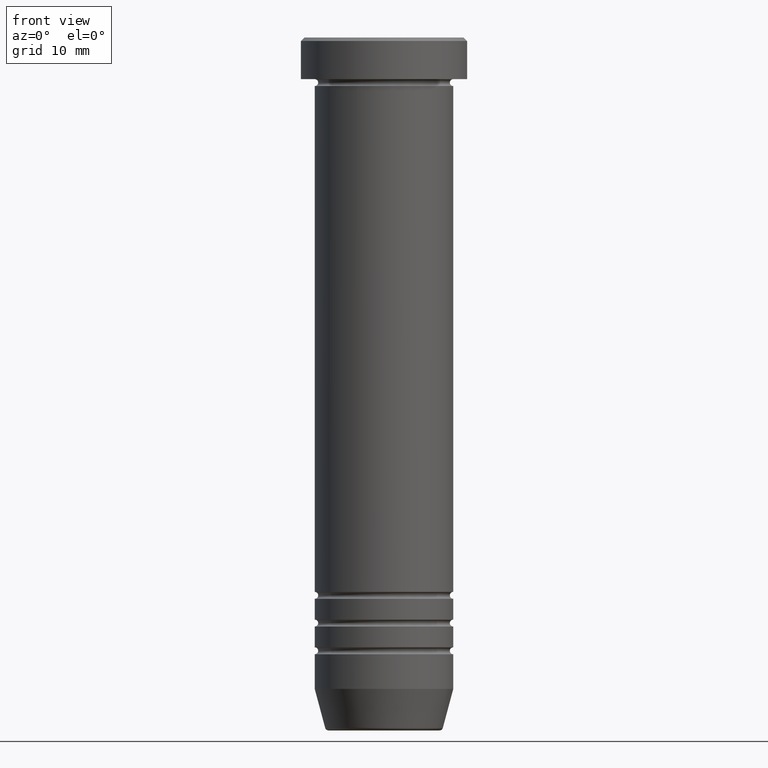
[diagram: clean part render]
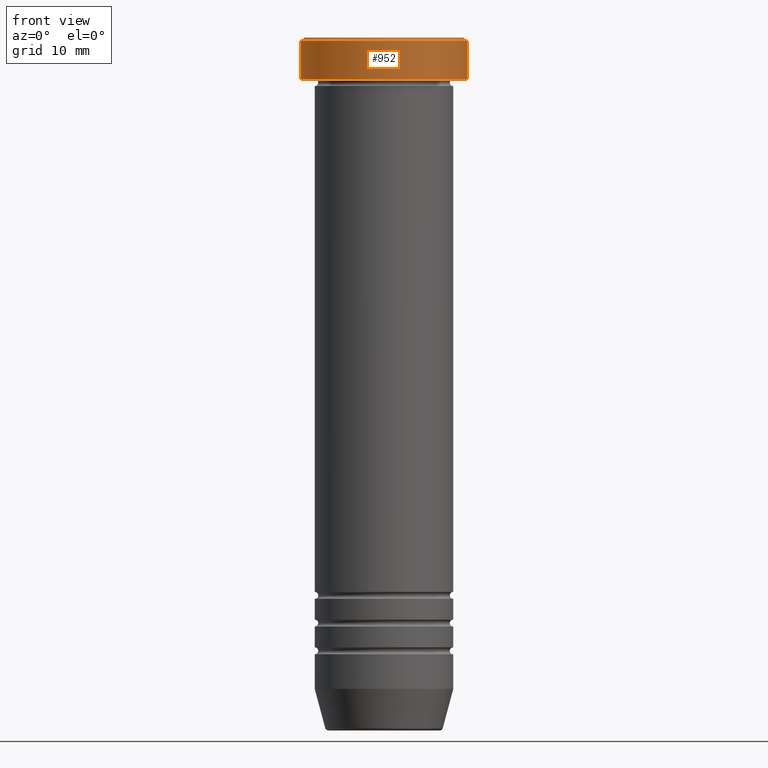
[diagram: same view with one face highlighted and labeled with its STEP entity id]
A machine part, front view. The second image highlights one B-rep face of the part: STEP entity #952.
In plain terms, the highlighted cylindrical surface (partial cylindrical patch) has radius 12 mm, axis along (-0, -0, 1).
Its self-contained STEP definition (entity closure, byte-faithful):
#114 = CIRCLE ( 'NONE', #205, 12.00000000000000000 ) ;
#116 = VECTOR ( 'NONE', #802, 1000.000000000000000 ) ;
#162 = EDGE_CURVE ( 'NONE', #290, #972, #1037, .T. ) ;
#177 = EDGE_CURVE ( 'NONE', #839, #674, #114, .T. ) ;
#189 = ORIENTED_EDGE ( 'NONE', *, *, #177, .T. ) ;
#205 = AXIS2_PLACEMENT_3D ( 'NONE', #904, #813, #257 ) ;
#236 = ORIENTED_EDGE ( 'NONE', *, *, #443, .T. ) ;
#257 = DIRECTION ( 'NONE',  ( 1.000000000000000000, 0.000000000000000000, 0.000000000000000000 ) ) ;
#279 = VECTOR ( 'NONE', #926, 1000.000000000000000 ) ;
#290 = VERTEX_POINT ( 'NONE', #941 ) ;
#328 = CARTESIAN_POINT ( 'NONE',  ( 0.000000000000000000, 0.000000000000000000, -0.5000000000000091038 ) ) ;
#346 = ORIENTED_EDGE ( 'NONE', *, *, #585, .F. ) ;
#412 = ORIENTED_EDGE ( 'NONE', *, *, #162, .T. ) ;
#419 = AXIS2_PLACEMENT_3D ( 'NONE', #871, #866, #790 ) ;
#443 = EDGE_CURVE ( 'NONE', #674, #290, #981, .T. ) ;
#482 = CARTESIAN_POINT ( 'NONE',  ( 12.00000000000000000, 0.000000000000000000, 0.000000000000000000 ) ) ;
#513 = CARTESIAN_POINT ( 'NONE',  ( -12.00000000000000000, 1.469576158976823947E-15, 0.000000000000000000 ) ) ;
#559 = CYLINDRICAL_SURFACE ( 'NONE', #419, 12.00000000000000000 ) ;
#583 = AXIS2_PLACEMENT_3D ( 'NONE', #328, #980, #740 ) ;
#585 = EDGE_CURVE ( 'NONE', #839, #972, #845, .T. ) ;
#674 = VERTEX_POINT ( 'NONE', #706 ) ;
#706 = CARTESIAN_POINT ( 'NONE',  ( 12.00000000000000000, 0.000000000000000000, -6.000000000000000000 ) ) ;
#719 = CARTESIAN_POINT ( 'NONE',  ( -12.00000000000000000, 1.469576158976823947E-15, -0.5000000000000091038 ) ) ;
#740 = DIRECTION ( 'NONE',  ( 1.000000000000000000, 0.000000000000000000, 0.000000000000000000 ) ) ;
#790 = DIRECTION ( 'NONE',  ( 1.000000000000000000, 0.000000000000000000, 0.000000000000000000 ) ) ;
#802 = DIRECTION ( 'NONE',  ( -0.000000000000000000, -0.000000000000000000, 1.000000000000000000 ) ) ;
#813 = DIRECTION ( 'NONE',  ( -0.000000000000000000, -0.000000000000000000, 1.000000000000000000 ) ) ;
#839 = VERTEX_POINT ( 'NONE', #847 ) ;
#845 = LINE ( 'NONE', #513, #279 ) ;
#847 = CARTESIAN_POINT ( 'NONE',  ( -12.00000000000000000, 1.469576158976823947E-15, -6.000000000000000000 ) ) ;
#866 = DIRECTION ( 'NONE',  ( -0.000000000000000000, -0.000000000000000000, 1.000000000000000000 ) ) ;
#871 = CARTESIAN_POINT ( 'NONE',  ( 0.000000000000000000, 0.000000000000000000, 0.000000000000000000 ) ) ;
#904 = CARTESIAN_POINT ( 'NONE',  ( 0.000000000000000000, 0.000000000000000000, -6.000000000000000000 ) ) ;
#926 = DIRECTION ( 'NONE',  ( -0.000000000000000000, -0.000000000000000000, 1.000000000000000000 ) ) ;
#941 = CARTESIAN_POINT ( 'NONE',  ( 12.00000000000000000, 0.000000000000000000, -0.5000000000000091038 ) ) ;
#943 = EDGE_LOOP ( 'NONE', ( #346, #189, #236, #412 ) ) ;
#952 = ADVANCED_FACE ( 'NONE', ( #962 ), #559, .T. ) ;
#962 = FACE_OUTER_BOUND ( 'NONE', #943, .T. ) ;
#972 = VERTEX_POINT ( 'NONE', #719 ) ;
#980 = DIRECTION ( 'NONE',  ( 0.000000000000000000, 0.000000000000000000, -1.000000000000000000 ) ) ;
#981 = LINE ( 'NONE', #482, #116 ) ;
#1037 = CIRCLE ( 'NONE', #583, 12.00000000000000000 ) ;